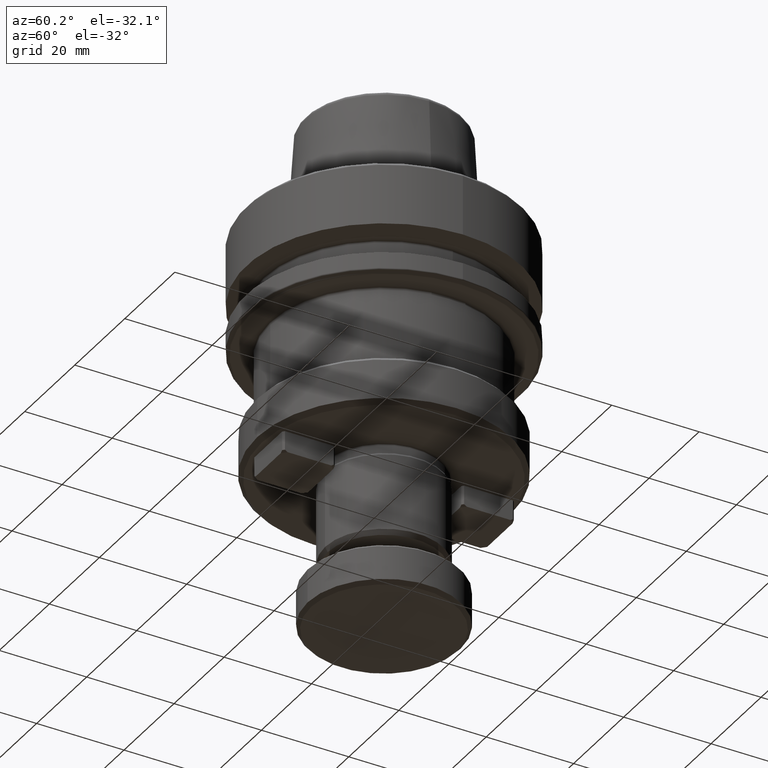
[diagram: clean part render]
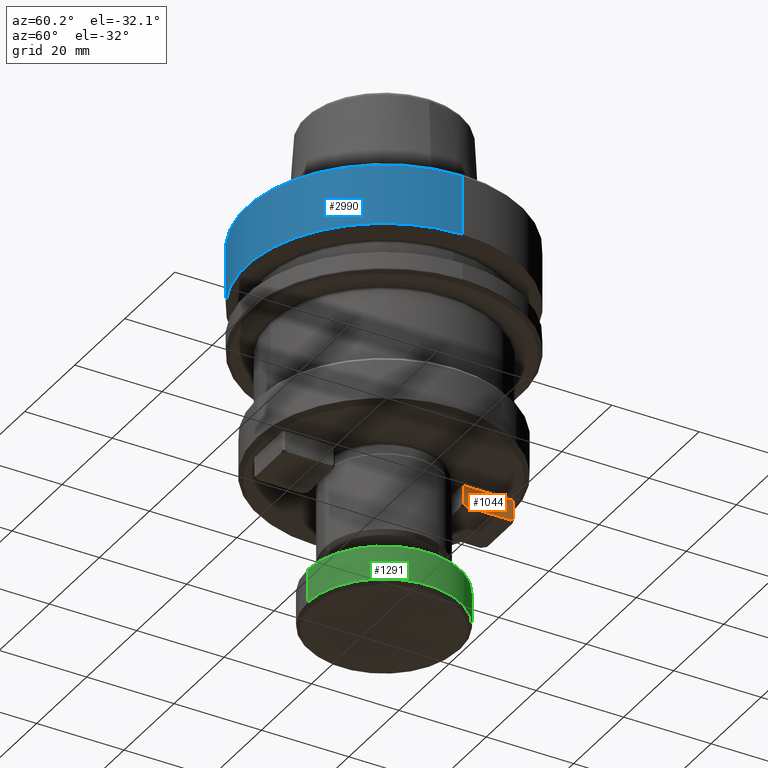
[diagram: same view with three faces highlighted in distinct colors, each labeled with its STEP entity id]
A machine part, auxiliary view with three faces highlighted in distinct colors.
Their STEP definitions:

[orange] entity #1044 — the highlighted planar face has unit normal (-1, -0, 0).
#74 = CARTESIAN_POINT ( 'NONE',  ( 7.902633352528939200, 12.37555689226138300, -0.4722817573831819500 ) ) ;
#120 = EDGE_CURVE ( 'NONE', #2698, #2053, #422, .T. ) ;
#269 = CARTESIAN_POINT ( 'NONE',  ( 7.902633352528937400, 18.96509994229509000, -0.7817923329828460100 ) ) ;
#272 = CARTESIAN_POINT ( 'NONE',  ( 7.902633352528937400, 30.16509994229509700, -5.131792332982859900 ) ) ;
#279 = CARTESIAN_POINT ( 'NONE',  ( 7.902633352528937400, 30.16509994229509700, -5.531792332982850400 ) ) ;
#357 = LINE ( 'NONE', #74, #1667 ) ;
#422 = LINE ( 'NONE', #2511, #1567 ) ;
#550 = ORIENTED_EDGE ( 'NONE', *, *, #2753, .T. ) ;
#573 = DIRECTION ( 'NONE',  ( 0.0000000000000000000, 0.8164965809277201500, -0.5773502691896341700 ) ) ;
#620 = CARTESIAN_POINT ( 'NONE',  ( 7.902633352528937400, 18.96509994229508700, -5.531792332982843300 ) ) ;
#716 = EDGE_CURVE ( 'NONE', #2053, #2548, #1478, .T. ) ;
#780 = VECTOR ( 'NONE', #2493, 1000.000000000000000 ) ;
#1015 = EDGE_CURVE ( 'NONE', #2548, #1643, #1921, .T. ) ;
#1044 = ADVANCED_FACE ( 'NONE', ( #3007 ), #1549, .F. ) ;
#1060 = CARTESIAN_POINT ( 'NONE',  ( 7.902633352528937400, 30.16509994229509700, -5.531792332982850400 ) ) ;
#1100 = DIRECTION ( 'NONE',  ( -0.0000000000000000000, 1.870988165364012400E-016, 1.000000000000000000 ) ) ;
#1108 = CARTESIAN_POINT ( 'NONE',  ( 7.902633352528937400, 19.53078536724436600, -5.531792332982843300 ) ) ;
#1266 = CARTESIAN_POINT ( 'NONE',  ( 7.902633352528937400, 29.59941451734584900, -5.531792332982850400 ) ) ;
#1272 = DIRECTION ( 'NONE',  ( 0.0000000000000000000, 0.8164965809277370300, 0.5773502691896103000 ) ) ;
#1294 = ORIENTED_EDGE ( 'NONE', *, *, #120, .T. ) ;
#1306 = DIRECTION ( 'NONE',  ( 0.0000000000000000000, 0.0000000000000000000, 1.000000000000000000 ) ) ;
#1344 = VERTEX_POINT ( 'NONE', #1108 ) ;
#1478 = LINE ( 'NONE', #2866, #2820 ) ;
#1549 = PLANE ( 'NONE',  #2076 ) ;
#1567 = VECTOR ( 'NONE', #1272, 1000.000000000000000 ) ;
#1619 = DIRECTION ( 'NONE',  ( -0.0000000000000000000, 1.870988165364012400E-016, 1.000000000000000000 ) ) ;
#1630 = VECTOR ( 'NONE', #1100, 1000.000000000000000 ) ;
#1638 = ORIENTED_EDGE ( 'NONE', *, *, #1676, .F. ) ;
#1643 = VERTEX_POINT ( 'NONE', #269 ) ;
#1667 = VECTOR ( 'NONE', #573, 1000.000000000000200 ) ;
#1676 = EDGE_CURVE ( 'NONE', #2698, #1344, #2108, .T. ) ;
#1752 = CARTESIAN_POINT ( 'NONE',  ( 7.902633352528937400, 18.96509994229508700, -5.131792332982803900 ) ) ;
#1785 = EDGE_CURVE ( 'NONE', #2045, #1643, #2301, .T. ) ;
#1921 = LINE ( 'NONE', #2792, #3166 ) ;
#2045 = VERTEX_POINT ( 'NONE', #1752 ) ;
#2053 = VERTEX_POINT ( 'NONE', #272 ) ;
#2076 = AXIS2_PLACEMENT_3D ( 'NONE', #1060, #2815, #1306 ) ;
#2108 = LINE ( 'NONE', #279, #780 ) ;
#2301 = LINE ( 'NONE', #620, #1630 ) ;
#2493 = DIRECTION ( 'NONE',  ( 0.0000000000000000000, -1.000000000000000000, 6.195440985631451400E-016 ) ) ;
#2510 = EDGE_LOOP ( 'NONE', ( #2822, #550, #1638, #1294, #2923, #3127 ) ) ;
#2511 = CARTESIAN_POINT ( 'NONE',  ( 7.902633352528937400, 23.08797632566215100, -10.13607443359927600 ) ) ;
#2548 = VERTEX_POINT ( 'NONE', #3230 ) ;
#2698 = VERTEX_POINT ( 'NONE', #1266 ) ;
#2753 = EDGE_CURVE ( 'NONE', #2045, #1344, #357, .T. ) ;
#2792 = CARTESIAN_POINT ( 'NONE',  ( 7.902633352528937400, 30.16509994229509700, -0.7817923329828530000 ) ) ;
#2815 = DIRECTION ( 'NONE',  ( -1.000000000000000000, -0.0000000000000000000, 0.0000000000000000000 ) ) ;
#2820 = VECTOR ( 'NONE', #1619, 1000.000000000000000 ) ;
#2822 = ORIENTED_EDGE ( 'NONE', *, *, #1785, .F. ) ;
#2866 = CARTESIAN_POINT ( 'NONE',  ( 7.902633352528937400, 30.16509994229509700, -5.531792332982850400 ) ) ;
#2923 = ORIENTED_EDGE ( 'NONE', *, *, #716, .T. ) ;
#3007 = FACE_OUTER_BOUND ( 'NONE', #2510, .T. ) ;
#3036 = DIRECTION ( 'NONE',  ( 0.0000000000000000000, -1.000000000000000000, 6.195440985631451400E-016 ) ) ;
#3127 = ORIENTED_EDGE ( 'NONE', *, *, #1015, .T. ) ;
#3166 = VECTOR ( 'NONE', #3036, 1000.000000000000000 ) ;
#3230 = CARTESIAN_POINT ( 'NONE',  ( 7.902633352528937400, 30.16509994229509700, -0.7817923329828530000 ) ) ;

[blue] entity #2990 — the highlighted cylindrical surface (partial cylindrical patch) has radius 31.5 mm, axis along (-0, -0, 1).
#169 = DIRECTION ( 'NONE',  ( 1.000000000000000000, 0.0000000000000000000, 0.0000000000000000000 ) ) ;
#194 = CARTESIAN_POINT ( 'NONE',  ( -29.59736664747105900, 4.065099942295095300, 87.94877588520934400 ) ) ;
#238 = DIRECTION ( 'NONE',  ( 1.000000000000000000, 0.0000000000000000000, 0.0000000000000000000 ) ) ;
#289 = VERTEX_POINT ( 'NONE', #3147 ) ;
#293 = ORIENTED_EDGE ( 'NONE', *, *, #1177, .F. ) ;
#307 = EDGE_LOOP ( 'NONE', ( #293, #3154, #965, #1787 ) ) ;
#416 = VERTEX_POINT ( 'NONE', #2851 ) ;
#460 = EDGE_CURVE ( 'NONE', #2175, #289, #2274, .T. ) ;
#746 = CIRCLE ( 'NONE', #848, 31.50000000000000000 ) ;
#781 = CARTESIAN_POINT ( 'NONE',  ( -29.59736664747105900, 4.065099942295095300, 39.59570674177645300 ) ) ;
#848 = AXIS2_PLACEMENT_3D ( 'NONE', #3228, #1727, #238 ) ;
#965 = ORIENTED_EDGE ( 'NONE', *, *, #1042, .T. ) ;
#1042 = EDGE_CURVE ( 'NONE', #289, #416, #2567, .T. ) ;
#1082 = VECTOR ( 'NONE', #2065, 1000.000000000000000 ) ;
#1177 = EDGE_CURVE ( 'NONE', #2175, #1184, #2845, .T. ) ;
#1184 = VERTEX_POINT ( 'NONE', #2425 ) ;
#1273 = DIRECTION ( 'NONE',  ( -0.0000000000000000000, -0.0000000000000000000, 1.000000000000000000 ) ) ;
#1437 = AXIS2_PLACEMENT_3D ( 'NONE', #1916, #2163, #169 ) ;
#1682 = DIRECTION ( 'NONE',  ( -0.0000000000000000000, -0.0000000000000000000, 1.000000000000000000 ) ) ;
#1706 = FACE_OUTER_BOUND ( 'NONE', #307, .T. ) ;
#1727 = DIRECTION ( 'NONE',  ( -0.0000000000000000000, -0.0000000000000000000, 1.000000000000000000 ) ) ;
#1787 = ORIENTED_EDGE ( 'NONE', *, *, #1918, .F. ) ;
#1789 = CYLINDRICAL_SURFACE ( 'NONE', #1437, 31.50000000000000000 ) ;
#1916 = CARTESIAN_POINT ( 'NONE',  ( 1.902633352528940900, 4.065099942295091800, 87.94877588520934400 ) ) ;
#1918 = EDGE_CURVE ( 'NONE', #1184, #416, #746, .T. ) ;
#2065 = DIRECTION ( 'NONE',  ( -0.0000000000000000000, -0.0000000000000000000, 1.000000000000000000 ) ) ;
#2092 = AXIS2_PLACEMENT_3D ( 'NONE', #2781, #1273, #3028 ) ;
#2152 = VECTOR ( 'NONE', #1682, 1000.000000000000000 ) ;
#2163 = DIRECTION ( 'NONE',  ( -0.0000000000000000000, -0.0000000000000000000, 1.000000000000000000 ) ) ;
#2175 = VERTEX_POINT ( 'NONE', #781 ) ;
#2274 = CIRCLE ( 'NONE', #2092, 31.50000000000000000 ) ;
#2311 = CARTESIAN_POINT ( 'NONE',  ( 33.40263335252893700, 4.065099942295091800, 87.94877588520934400 ) ) ;
#2425 = CARTESIAN_POINT ( 'NONE',  ( -29.59736664747105900, 4.065099942295095300, 53.25252224206791900 ) ) ;
#2567 = LINE ( 'NONE', #2311, #1082 ) ;
#2781 = CARTESIAN_POINT ( 'NONE',  ( 1.902633352528940900, 4.065099942295091800, 39.59570674177645300 ) ) ;
#2845 = LINE ( 'NONE', #194, #2152 ) ;
#2851 = CARTESIAN_POINT ( 'NONE',  ( 33.40263335252893700, 4.065099942295091800, 53.25252224206791900 ) ) ;
#2990 = ADVANCED_FACE ( 'NONE', ( #1706 ), #1789, .T. ) ;
#3028 = DIRECTION ( 'NONE',  ( 1.000000000000000000, 0.0000000000000000000, 0.0000000000000000000 ) ) ;
#3147 = CARTESIAN_POINT ( 'NONE',  ( 33.40263335252893700, 4.065099942295091800, 39.59570674177645300 ) ) ;
#3154 = ORIENTED_EDGE ( 'NONE', *, *, #460, .T. ) ;
#3228 = CARTESIAN_POINT ( 'NONE',  ( 1.902633352528940900, 4.065099942295091800, 53.25252224206791900 ) ) ;

[green] entity #1291 — the highlighted cylindrical surface (partial cylindrical patch) has radius 17.5 mm, axis along (-0, -0, 1).
#42 = VERTEX_POINT ( 'NONE', #336 ) ;
#76 = AXIS2_PLACEMENT_3D ( 'NONE', #932, #2677, #1182 ) ;
#201 = VERTEX_POINT ( 'NONE', #1388 ) ;
#259 = CARTESIAN_POINT ( 'NONE',  ( 1.902633352528937400, 4.065099942295090900, -34.98179233298284900 ) ) ;
#336 = CARTESIAN_POINT ( 'NONE',  ( 1.902633352528937400, -13.43490005770491000, -27.28179233298286400 ) ) ;
#476 = VERTEX_POINT ( 'NONE', #2043 ) ;
#507 = DIRECTION ( 'NONE',  ( 0.0000000000000000000, -1.000000000000000000, 0.0000000000000000000 ) ) ;
#784 = EDGE_CURVE ( 'NONE', #201, #1093, #1882, .T. ) ;
#908 = ORIENTED_EDGE ( 'NONE', *, *, #2259, .T. ) ;
#932 = CARTESIAN_POINT ( 'NONE',  ( 1.902633352528937400, 4.065099942295090900, -27.28179233298286400 ) ) ;
#954 = AXIS2_PLACEMENT_3D ( 'NONE', #259, #2002, #507 ) ;
#987 = DIRECTION ( 'NONE',  ( -0.0000000000000000000, -2.108007874144295800E-017, 1.000000000000000000 ) ) ;
#1012 = LINE ( 'NONE', #3068, #2185 ) ;
#1020 = ORIENTED_EDGE ( 'NONE', *, *, #784, .T. ) ;
#1084 = ORIENTED_EDGE ( 'NONE', *, *, #1168, .F. ) ;
#1093 = VERTEX_POINT ( 'NONE', #1818 ) ;
#1102 = LINE ( 'NONE', #1131, #1860 ) ;
#1131 = CARTESIAN_POINT ( 'NONE',  ( 1.902633352528939600, 21.56509994229508800, 39.45128301366276700 ) ) ;
#1159 = ORIENTED_EDGE ( 'NONE', *, *, #2380, .T. ) ;
#1168 = EDGE_CURVE ( 'NONE', #201, #42, #1012, .T. ) ;
#1182 = DIRECTION ( 'NONE',  ( 0.0000000000000000000, 1.000000000000000000, 0.0000000000000000000 ) ) ;
#1291 = ADVANCED_FACE ( 'NONE', ( #2617 ), #2544, .T. ) ;
#1388 = CARTESIAN_POINT ( 'NONE',  ( 1.902633352528937400, -13.43490005770491400, -34.98179233298284900 ) ) ;
#1419 = CIRCLE ( 'NONE', #76, 17.50000000000000000 ) ;
#1482 = DIRECTION ( 'NONE',  ( 0.0000000000000000000, -1.000000000000000000, 0.0000000000000000000 ) ) ;
#1748 = CARTESIAN_POINT ( 'NONE',  ( 1.902633352528937400, 4.065099942295089100, 39.45128301366276700 ) ) ;
#1818 = CARTESIAN_POINT ( 'NONE',  ( 1.902633352528939600, 21.56509994229509500, -34.98179233298284900 ) ) ;
#1860 = VECTOR ( 'NONE', #2884, 1000.000000000000000 ) ;
#1882 = CIRCLE ( 'NONE', #954, 17.50000000000000400 ) ;
#2002 = DIRECTION ( 'NONE',  ( -0.0000000000000000000, -2.108007874144295800E-017, 1.000000000000000000 ) ) ;
#2043 = CARTESIAN_POINT ( 'NONE',  ( 1.902633352528939600, 21.56509994229509200, -27.28179233298286400 ) ) ;
#2185 = VECTOR ( 'NONE', #2414, 1000.000000000000000 ) ;
#2259 = EDGE_CURVE ( 'NONE', #1093, #476, #1102, .T. ) ;
#2380 = EDGE_CURVE ( 'NONE', #476, #42, #1419, .T. ) ;
#2414 = DIRECTION ( 'NONE',  ( -0.0000000000000000000, -2.108007874144295800E-017, 1.000000000000000000 ) ) ;
#2542 = AXIS2_PLACEMENT_3D ( 'NONE', #1748, #987, #1482 ) ;
#2544 = CYLINDRICAL_SURFACE ( 'NONE', #2542, 17.50000000000000000 ) ;
#2617 = FACE_OUTER_BOUND ( 'NONE', #3024, .T. ) ;
#2677 = DIRECTION ( 'NONE',  ( 0.0000000000000000000, 2.108007874144291800E-017, -1.000000000000000000 ) ) ;
#2884 = DIRECTION ( 'NONE',  ( -0.0000000000000000000, -2.108007874144295800E-017, 1.000000000000000000 ) ) ;
#3024 = EDGE_LOOP ( 'NONE', ( #1020, #908, #1159, #1084 ) ) ;
#3068 = CARTESIAN_POINT ( 'NONE',  ( 1.902633352528937400, -13.43490005770491400, 39.45128301366276700 ) ) ;